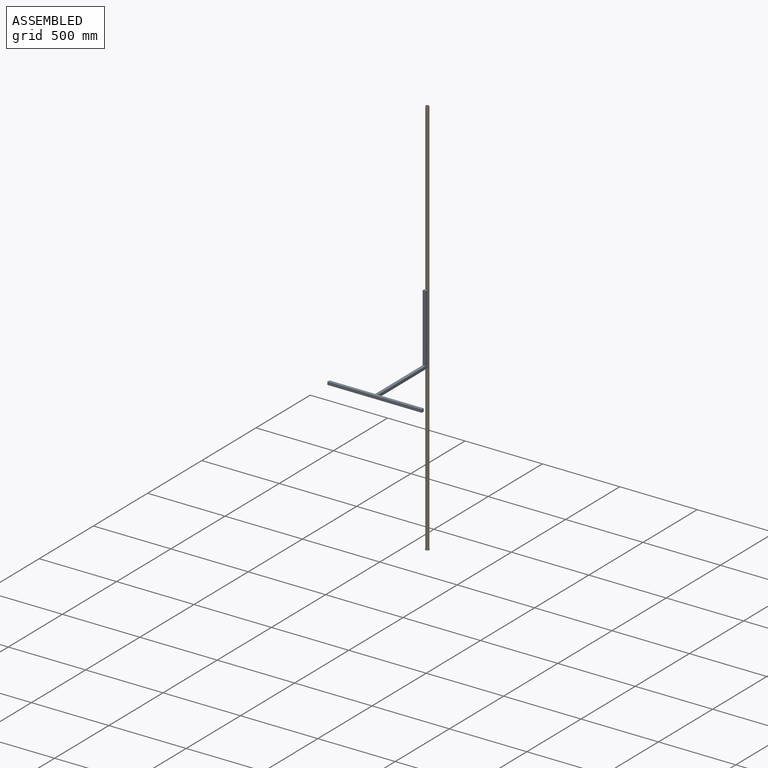
[diagram: assembled view]
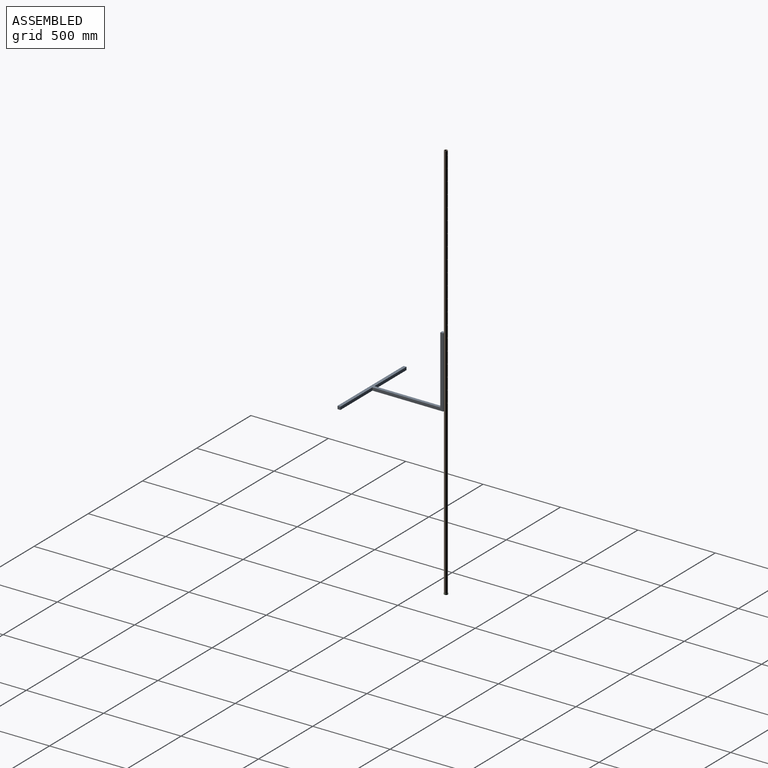
[diagram: assembled view, second angle]
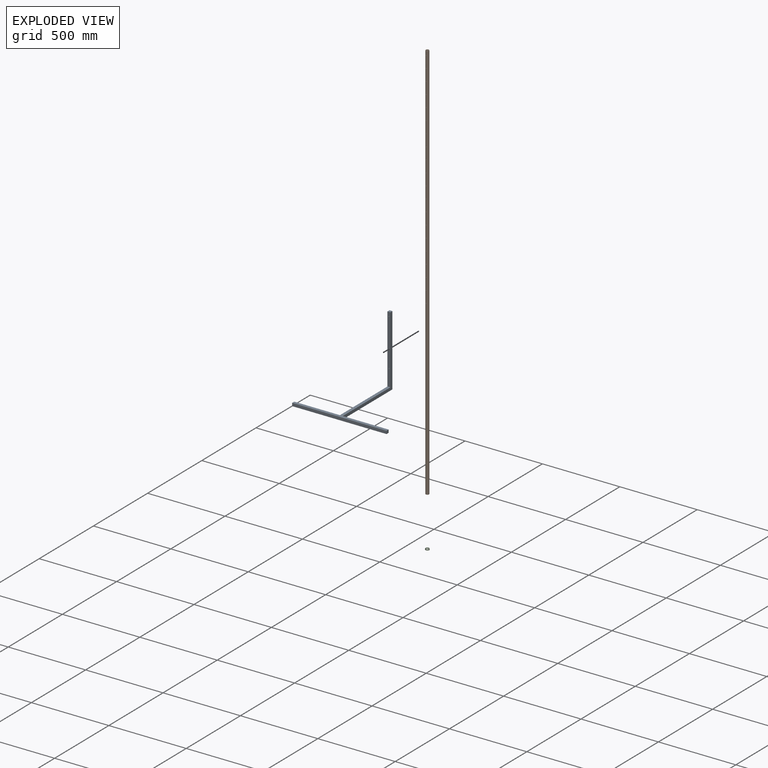
[diagram: exploded view]
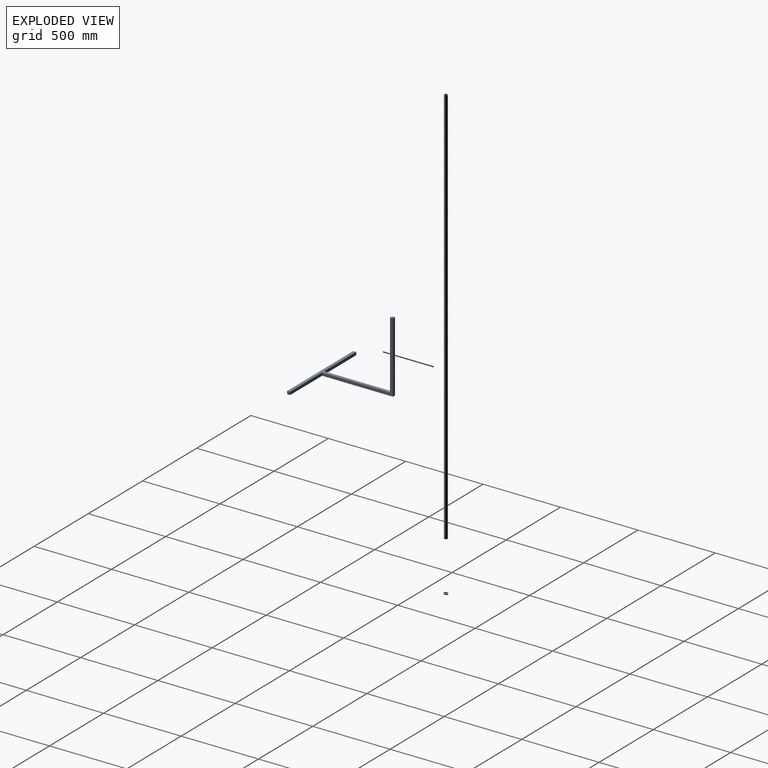
[diagram: exploded view, second angle]
ASSEMBLY  parts=3 mates=2
PART A: 14 faces, bbox 609.6x476.3x457.2 mm
  f0: plane 457.2x457.2mm, normal (-1,0,0), area 17056.4mm2, adj f1,f7,f8,f9,f10,f11
  f1: plane 295.28x19.05mm, normal (0,1,0), area 5625mm2, adj f0,f2,f8,f9
  f2: plane 19.05x19.05mm, normal (-1,0,0), area 362.9mm2, adj f1,f3,f8,f9
  f3: plane 609.6x19.05mm, normal (0,-1,0), area 11612.9mm2, adj f2,f4,f8,f9
  f4: plane 19.05x19.05mm, normal (1,0,0), area 362.9mm2, adj f3,f5,f8,f9
  f5: plane 295.28x19.05mm, normal (0,1,0), area 5625mm2, adj f4,f6,f8,f9
  f6: plane 457.2x457.2mm, normal (1,0,0), area 17056.4mm2, adj f5,f7,f8,f9,f10,f11
  f7: plane 457.2x19.05mm, normal (0,1,0), area 8674mm2, adj f0,f6,f9,f11,f12,f13
  f8: plane 609.6x457.2mm, normal (0,0,1), area 19959.6mm2, adj f0,f1,f2,f3,f4,f5,f6,f10
  f9: plane 609.6x476.25mm, normal (0,0,-1), area 20322.5mm2, adj f0,f1,f2,f3,f4,f5,f6,f7
  f10: plane 438.15x19.05mm, normal (0,-1,0), area 8311.1mm2, adj f0,f6,f8,f11,f12,f13
  f11: plane 19.05x19.05mm, normal (0,0,1), area 362.9mm2, adj f0,f6,f7,f10
  f12: cylinder r=2.38mm len=19.05mm, axis (0,1,0), area 285mm2, adj f7,f10
  f13: cylinder r=2.38mm len=19.05mm, axis (0,1,0), area 285mm2, adj f7,f10
PART B: 44 faces, bbox 21.3x21.3x2590.8 mm
  f0: cylinder r=2.38mm len=4.76mm, axis (0,-1,0), area 42.1mm2, adj f38,f39
  f1: cylinder r=2.38mm len=4.76mm, axis (0,-1,0), area 42.2mm2, adj f38,f39
  f2: cylinder r=2.38mm len=4.76mm, axis (0,-1,0), area 42.1mm2, adj f38,f39
  f3: cylinder r=2.38mm len=4.76mm, axis (0,-1,0), area 42.2mm2, adj f38,f39
  f4: cylinder r=2.38mm len=4.76mm, axis (0,-1,0), area 42.1mm2, adj f38,f39
  f5: cylinder r=2.38mm len=4.76mm, axis (0,-1,0), area 42.2mm2, adj f38,f39
  f6: cylinder r=2.38mm len=4.76mm, axis (0,-1,0), area 42.1mm2, adj f38,f39
  f7: cylinder r=2.38mm len=4.76mm, axis (0,-1,0), area 42.2mm2, adj f38,f39
  f8: cylinder r=2.38mm len=4.76mm, axis (0,-1,0), area 42.1mm2, adj f38,f39
  f9: cylinder r=2.38mm len=4.76mm, axis (0,-1,0), area 42.2mm2, adj f38,f39
  f10: cylinder r=2.38mm len=4.76mm, axis (0,-1,0), area 42.1mm2, adj f38,f39
  f11: cylinder r=2.38mm len=4.76mm, axis (0,-1,0), area 42.2mm2, adj f38,f39
  f12: cylinder r=2.38mm len=4.76mm, axis (0,-1,0), area 42.1mm2, adj f38,f39
  f13: cylinder r=2.38mm len=4.76mm, axis (0,-1,0), area 42.2mm2, adj f38,f39
  f14: cylinder r=2.38mm len=4.76mm, axis (0,-1,0), area 42.1mm2, adj f38,f39
  f15: cylinder r=2.38mm len=4.76mm, axis (0,-1,0), area 42.2mm2, adj f38,f39
  f16: cylinder r=2.38mm len=4.76mm, axis (0,-1,0), area 42.1mm2, adj f38,f39
  f17: cylinder r=2.38mm len=4.76mm, axis (0,-1,0), area 42.2mm2, adj f38,f39
  f18: cylinder r=2.38mm len=4.76mm, axis (0,-1,0), area 42.1mm2, adj f38,f39
  f19: cylinder r=2.38mm len=4.76mm, axis (0,-1,0), area 42.2mm2, adj f38,f39
  f20: cylinder r=2.38mm len=4.76mm, axis (0,-1,0), area 42.1mm2, adj f38,f39
  f21: cylinder r=2.38mm len=4.76mm, axis (0,-1,0), area 42.2mm2, adj f38,f39
  f22: cylinder r=2.38mm len=4.76mm, axis (0,-1,0), area 42.1mm2, adj f38,f39
  f23: cylinder r=2.38mm len=4.76mm, axis (0,-1,0), area 42.2mm2, adj f38,f39
  f24: cylinder r=2.38mm len=4.76mm, axis (0,-1,0), area 42.1mm2, adj f38,f39
  f25: cylinder r=2.38mm len=4.76mm, axis (0,-1,0), area 42.2mm2, adj f38,f39
  f26: cylinder r=2.38mm len=4.76mm, axis (0,-1,0), area 42.1mm2, adj f38,f39
  f27: cylinder r=2.38mm len=4.76mm, axis (0,-1,0), area 42.2mm2, adj f38,f39
  f28: cylinder r=2.38mm len=4.76mm, axis (0,-1,0), area 42.1mm2, adj f38,f39
  f29: cylinder r=2.38mm len=4.76mm, axis (0,-1,0), area 42.2mm2, adj f38,f39
  f30: cylinder r=2.38mm len=4.76mm, axis (0,-1,0), area 42.1mm2, adj f38,f39
  f31: cylinder r=2.38mm len=4.76mm, axis (0,-1,0), area 42.2mm2, adj f38,f39
  f32: cylinder r=2.38mm len=4.76mm, axis (0,-1,0), area 42.1mm2, adj f38,f39
  f33: cylinder r=2.38mm len=4.76mm, axis (0,-1,0), area 42.2mm2, adj f38,f39
  f34: cylinder r=2.38mm len=4.76mm, axis (0,-1,0), area 42.1mm2, adj f38,f39
  f35: cylinder r=2.38mm len=4.76mm, axis (0,-1,0), area 42.2mm2, adj f38,f39
  f36: cylinder r=2.38mm len=4.76mm, axis (0,-1,0), area 42.1mm2, adj f38,f39
  f37: cylinder r=2.38mm len=4.76mm, axis (0,-1,0), area 42.2mm2, adj f38,f39
  f38: cylinder r=7.9mm len=2590.8mm, axis (0,0,1), area 127869mm2, adj f0,f1,f2,f3,f4,f5,f6,f7
  f39: cylinder r=10.67mm len=2590.8mm, axis (0,0,1), area 172944.3mm2, adj f0,f1,f2,f3,f4,f5,f6,f7
  f40: plane 21.34x21.34mm, normal (0,0,-1), area 161.5mm2, adj f38,f39
  f41: plane 21.34x21.34mm, normal (0,0,1), area 161.5mm2, adj f38,f39
  f42: cylinder r=2.38mm len=4.76mm, axis (0,-1,0), area 42.1mm2, adj f38,f39
  f43: cylinder r=2.38mm len=4.76mm, axis (0,-1,0), area 42.2mm2, adj f38,f39
PART C: 4 faces, bbox 24.4x24.4x6.4 mm
  f0: cylinder r=10.67mm len=21.34mm, axis (0,0,-1), area 425.6mm2, adj f2,f3
  f1: cylinder r=12.19mm len=24.38mm, axis (0,0,-1), area 486.4mm2, adj f2,f3
  f2: plane 24.38x24.38mm, normal (0,0,1), area 109.4mm2, adj f0,f1
  f3: plane 24.38x24.38mm, normal (0,0,-1), area 109.4mm2, adj f0,f1
PLACE A at identity fixed
PLACE B t=(0,0,1067.53)mm
PLACE C t=(0,0,1067.53)mm
MATE fastened C.f0 <-> B.f38  axis (0,0,-1) through (0,10.67,-1066.07)mm
MATE slider A.f11 <-> B.f41  axis (0,0,1) through (0,0,457.2)mm
